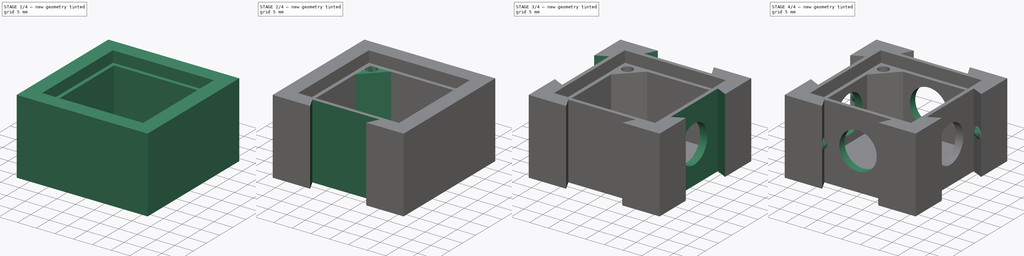
[diagram: build sequence overview — one tinted view per stage of 4, left to right]
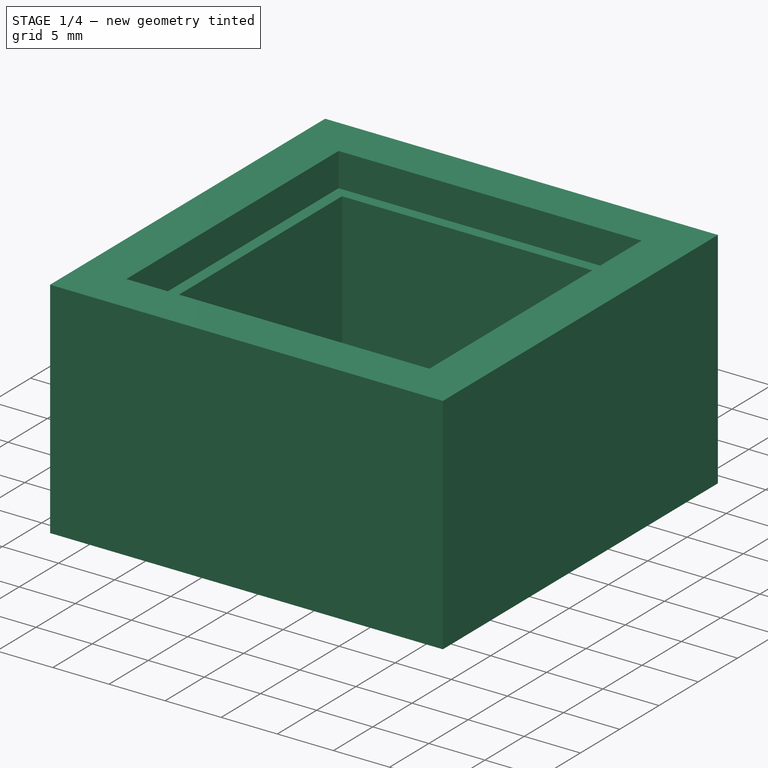
[diagram: stage 1 of 4 — iso view after this stage's code; geometry added in this stage tinted green]
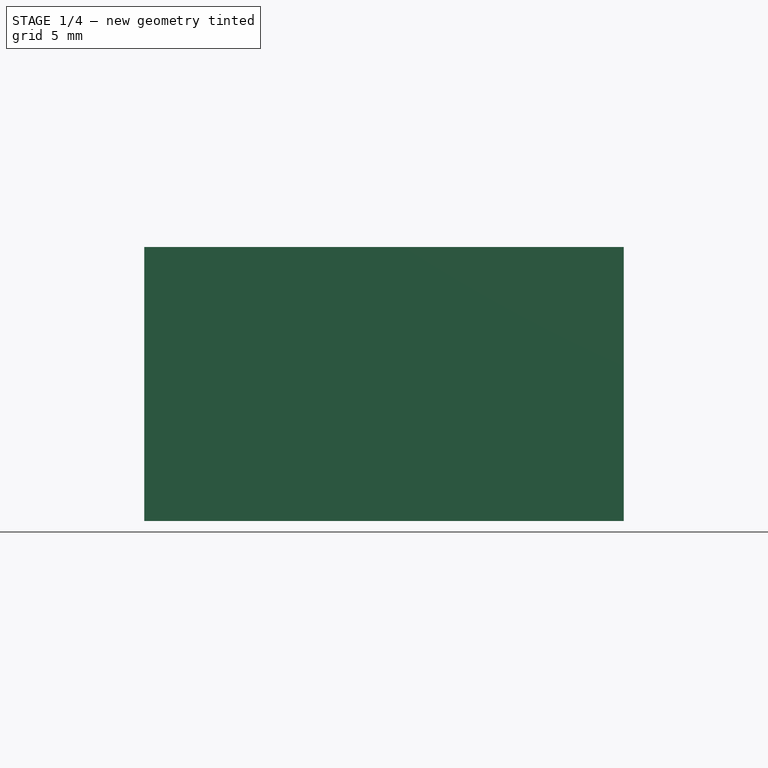
[diagram: stage 1 of 4 — front view after this stage's code; geometry added in this stage tinted green]
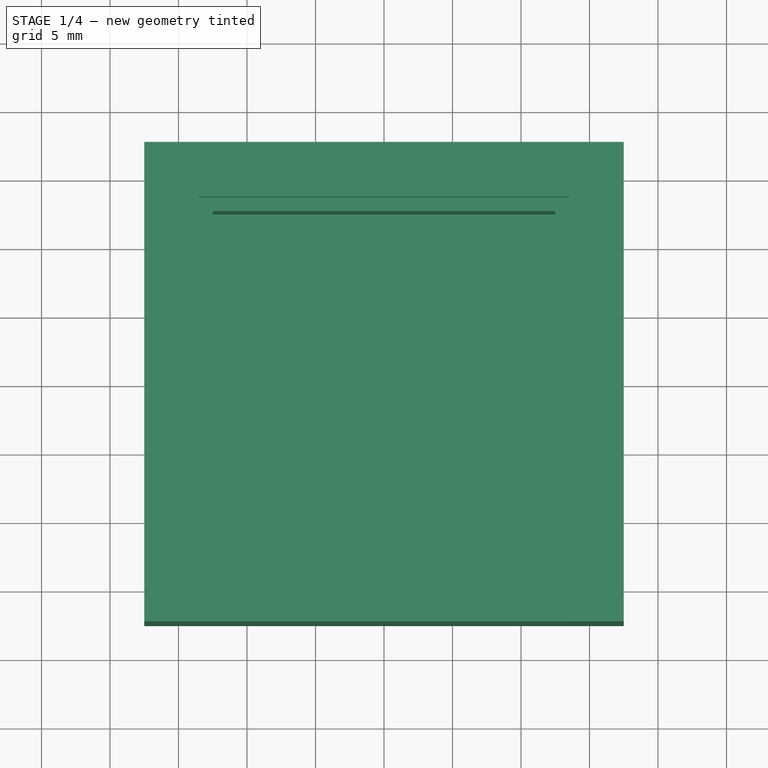
[diagram: stage 1 of 4 — top view after this stage's code; geometry added in this stage tinted green]
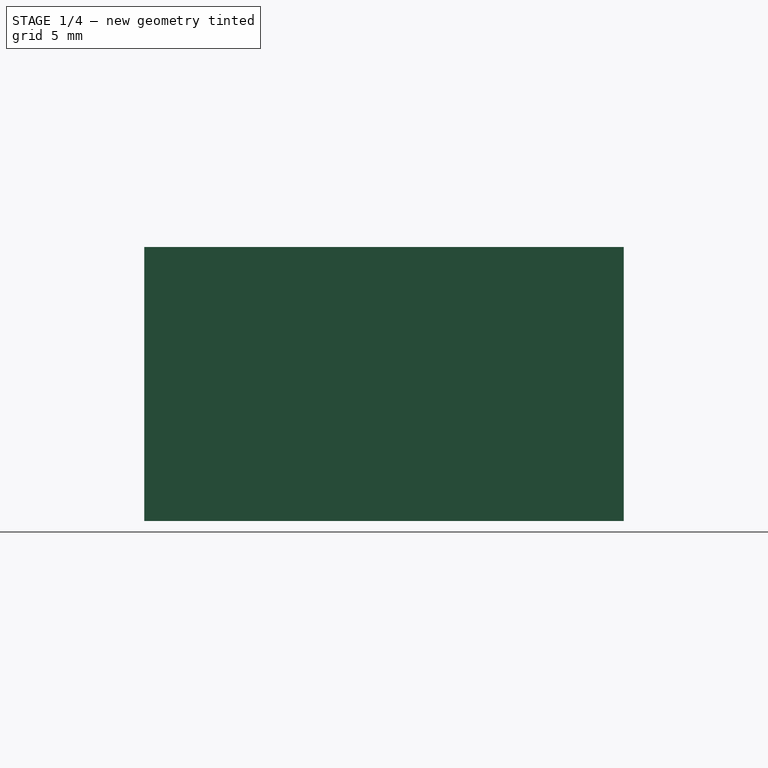
[diagram: stage 1 of 4 — right view after this stage's code; geometry added in this stage tinted green]
FCSTD DOCUMENT  (FreeCAD 0.18R4 (GitTag))
Label: CV2_4xGateway
License: All rights reserved
LicenseURL: http://en.wikipedia.org/wiki/All_rights_reserved
objects: Sketcher::SketchObject×8, PartDesign::Pocket×5, PartDesign::PolarPattern×3, PartDesign::Pad×2, PartDesign::Plane×1, PartDesign::Revolution×1, PartDesign::Mirrored×1, PartDesign::MultiTransform×1, PartDesign::Body×1
note: 31 computed .brp shape members not serialized (recipe doc carries the construction recipe); baked Part::Feature solids carry a one-line shape summary decoded from their .brp

FEATURE [Sketcher::SketchObject] Sketch
  MapMode = 5
  Support = -> [XY_Plane]
  sketch-geometry (4):
    g0: LineSegment StartX=-17.5 StartY=17.5 StartZ=0 EndX=17.5 EndY=17.5 EndZ=0
    g1: LineSegment StartX=17.5 StartY=17.5 StartZ=0 EndX=17.5 EndY=-17.5 EndZ=0
    g2: LineSegment StartX=17.5 StartY=-17.5 StartZ=0 EndX=-17.5 EndY=-17.5 EndZ=0
    g3: LineSegment StartX=-17.5 StartY=-17.5 StartZ=0 EndX=-17.5 EndY=17.5 EndZ=0
  constraints (10):
    c: Coincident(g0,g1)
    c: Coincident(g1,g2)
    c: Coincident(g2,g3)
    c: Coincident(g3,g0)
    c: Horizontal(g2)
    c: Vertical(g1)
    c: DistanceX(g2,g2) = 35
    c: DistanceY(g1,g1) = 35
    c: Symmetric(g0,g2,g-1)
    c: Symmetric(g0,g0,g-2)
FEATURE [PartDesign::Pad] Pad  label="Case"
  Length = 20
  Length2 = 100
  Profile = -> Sketch
  Type = 0
FEATURE [Sketcher::SketchObject] Sketch001
  MapMode = 5
  Placement = pos=(0,0,20) rot=(0,0,1;0rad)
  Support = -> [Pad]
  sketch-geometry (4):
    g0: LineSegment StartX=-13.5 StartY=13.5 StartZ=0 EndX=13.5 EndY=13.5 EndZ=0
    g1: LineSegment StartX=13.5 StartY=13.5 StartZ=0 EndX=13.5 EndY=-13.5 EndZ=0
    g2: LineSegment StartX=13.5 StartY=-13.5 StartZ=0 EndX=-13.5 EndY=-13.5 EndZ=0
    g3: LineSegment StartX=-13.5 StartY=-13.5 StartZ=0 EndX=-13.5 EndY=13.5 EndZ=0
  constraints (10):
    c: Coincident(g0,g1)
    c: Coincident(g1,g2)
    c: Coincident(g2,g3)
    c: Coincident(g3,g0)
    c: Horizontal(g2)
    c: Vertical(g1)
    c: DistanceX(g2,g2) = 27
    c: DistanceY(g1,g1) = 27
    c: Symmetric(g2,g0,g-1)
    c: Symmetric(g0,g0,g-2)
FEATURE [PartDesign::Pocket] Pocket  label="Plexi-Cutout"
  BaseFeature = -> Pad
  Length = 3
  Length2 = 100
  Profile = -> Sketch001
  Type = 0
FEATURE [Sketcher::SketchObject] Sketch002
  MapMode = 5
  Placement = pos=(0,0,17) rot=(0,0,1;0rad)
  Support = -> [Pocket]
  sketch-geometry (4):
    g0: LineSegment StartX=-12.5 StartY=12.5 StartZ=0 EndX=12.5 EndY=12.5 EndZ=0
    g1: LineSegment StartX=12.5 StartY=12.5 StartZ=0 EndX=12.5 EndY=-12.5 EndZ=0
    g2: LineSegment StartX=12.5 StartY=-12.5 StartZ=0 EndX=-12.5 EndY=-12.5 EndZ=0
    g3: LineSegment StartX=-12.5 StartY=-12.5 StartZ=0 EndX=-12.5 EndY=12.5 EndZ=0
  constraints (10):
    c: Coincident(g0,g1)
    c: Coincident(g1,g2)
    c: Coincident(g2,g3)
    c: Coincident(g3,g0)
    c: Horizontal(g2)
    c: Vertical(g1)
    c: DistanceX(g2,g2) = 25
    c: DistanceY(g1,g1) = 25
    c: Symmetric(g0,g0,g-2)
    c: Symmetric(g2,g0,g-1)
FEATURE [PartDesign::Pocket] Pocket001
  BaseFeature = -> Pocket
  Length = 14
  Length2 = 100
  Profile = -> Sketch002
  Type = 0
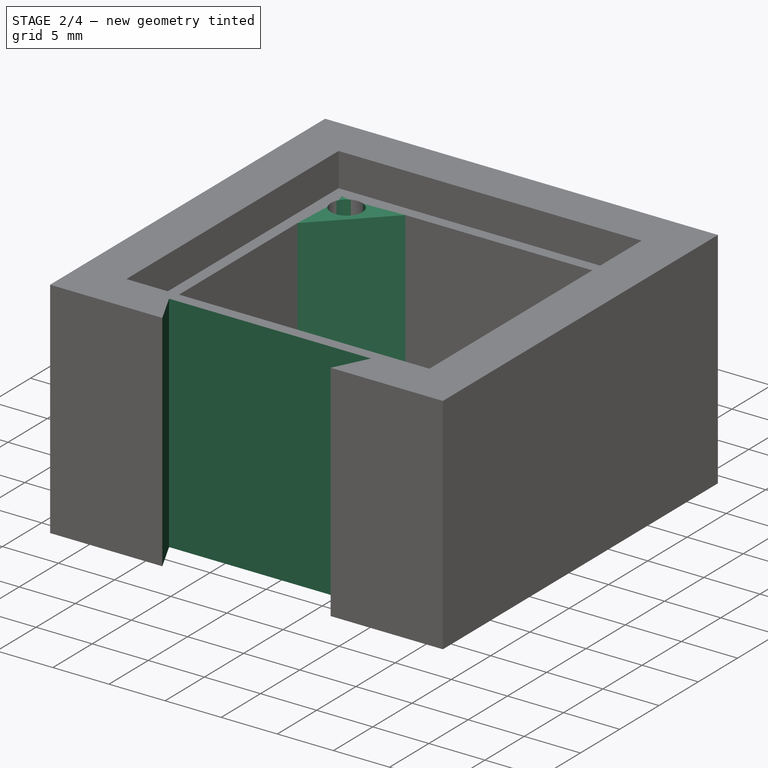
[diagram: stage 2 of 4 — iso view after this stage's code; geometry added in this stage tinted green]
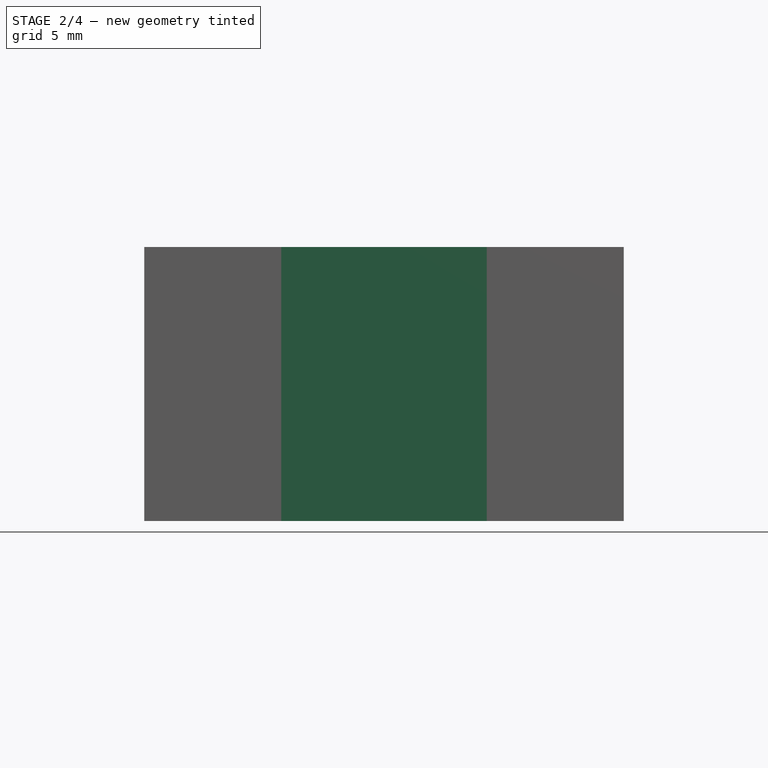
[diagram: stage 2 of 4 — front view after this stage's code; geometry added in this stage tinted green]
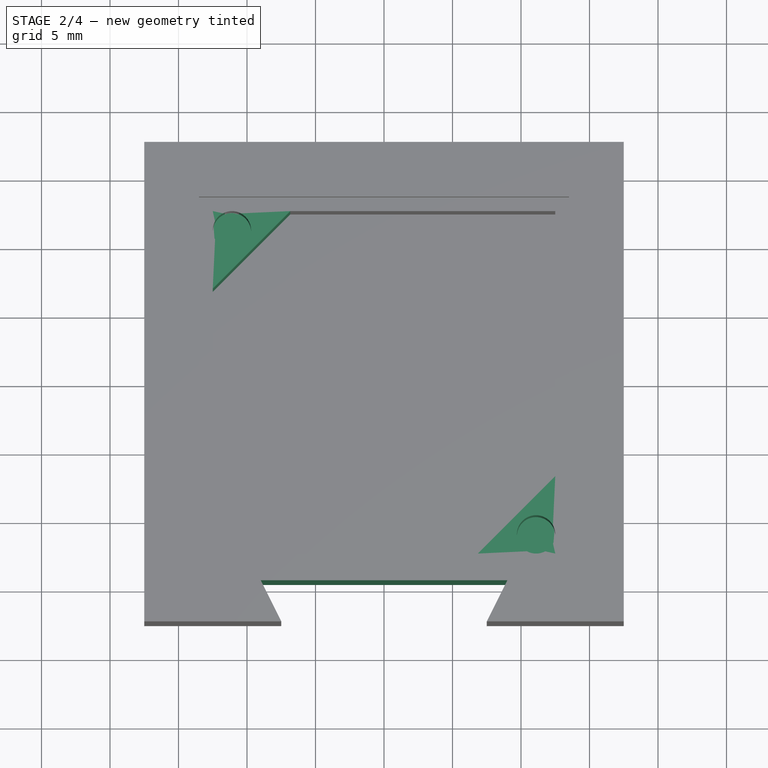
[diagram: stage 2 of 4 — top view after this stage's code; geometry added in this stage tinted green]
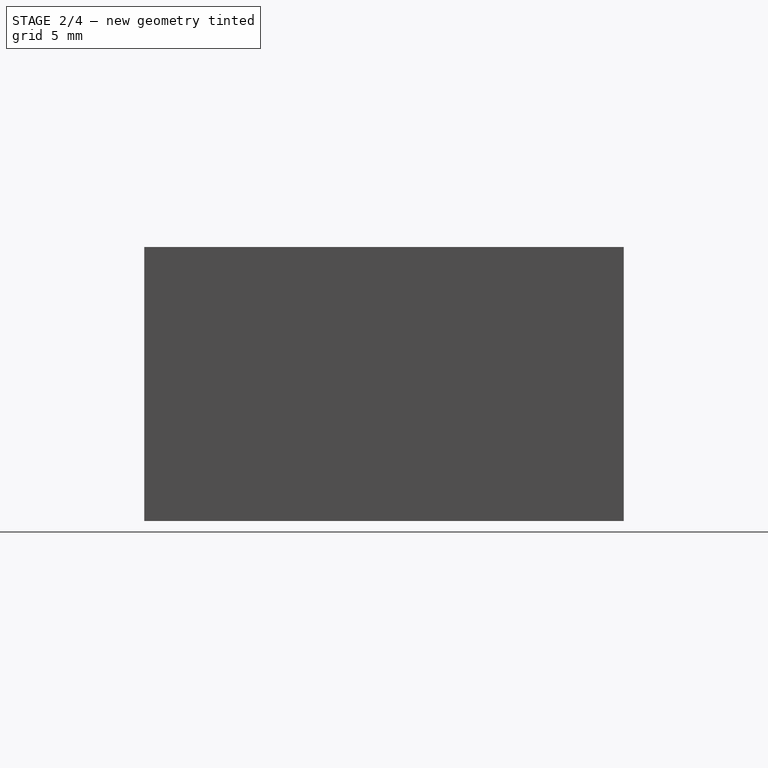
[diagram: stage 2 of 4 — right view after this stage's code; geometry added in this stage tinted green]
FEATURE [Sketcher::SketchObject] Sketch003
  ExternalGeometry = -> [Pocket001]
  MapMode = 5
  Placement = pos=(0,0,3) rot=(0,0,1;0rad)
  Support = -> [Pocket001]
  sketch-geometry (6):
    g0: LineSegment StartX=-12.5 StartY=12.5 StartZ=0 EndX=-12.5 EndY=6.84315 EndZ=0
    g1: LineSegment StartX=-12.5 StartY=6.84315 StartZ=0 EndX=-6.84315 EndY=12.5 EndZ=0
    g2: LineSegment StartX=-6.84315 StartY=12.5 StartZ=0 EndX=-12.5 EndY=12.5 EndZ=0
    g3: LineSegment StartX=6.84315 StartY=-12.5 StartZ=0 EndX=12.5 EndY=-12.5 EndZ=0
    g4: LineSegment StartX=12.5 StartY=-12.5 StartZ=0 EndX=12.5 EndY=-6.84315 EndZ=0
    g5: LineSegment StartX=12.5 StartY=-6.84315 StartZ=0 EndX=6.84315 EndY=-12.5 EndZ=0
  constraints (16):
    c: Coincident(g0,g1)
    c: Coincident(g1,g2)
    c: Coincident(g2,g0)
    c: Distance(g1) = 8
    c: Coincident(g0,g-3)
    c: PointOnObject(g0,g-3)
    c: Coincident(g3,g4)
    c: Coincident(g4,g5)
    c: Coincident(g5,g3)
    c: Perpendicular(g4,g3)
    c: Perpendicular(g2,g0)
    c: Equal(g0,g2)
    c: Coincident(g3,g-4)
    c: Distance(g5) = 8
    c: PointOnObject(g4,g-4)
    c: Equal(g3,g4)
FEATURE [PartDesign::Pad] Pad001  label="Borehole_Support"
  BaseFeature = -> Pocket001
  Length = 14
  Length2 = 100
  Profile = -> Sketch003
  Type = 0
FEATURE [Sketcher::SketchObject] Sketch004
  ExternalGeometry = -> [Pad001]
  MapMode = 5
  Placement = pos=(0,0,17) rot=(0,0,1;0rad)
  Support = -> [Pad001]
  sketch-geometry (2):
    g0: Circle CenterX=-11.1 CenterY=11.1 CenterZ=0 NormalX=0 NormalY=0 NormalZ=1 AngleXU=0 Radius=1.4
    g1: Circle CenterX=11.1 CenterY=-11.1 CenterZ=0 NormalX=0 NormalY=0 NormalZ=1 AngleXU=0 Radius=1.4
  constraints (6):
    c: Radius(g0) = 1.4
    c: Radius(g1) = 1.4
    c: Tangent(g0,g-7)
    c: Tangent(g0,g-8)
    c: Tangent(g1,g-10)
    c: Tangent(g-9,g1)
FEATURE [PartDesign::Pocket] Pocket002  label="Boreholes"
  BaseFeature = -> Pad001
  Length = 8
  Length2 = 100
  Profile = -> Sketch004
  Type = 0
FEATURE [Sketcher::SketchObject] Sketch009
  MapMode = 5
  Placement = pos=(0,0,20) rot=(0,0,1;0rad)
  Support = -> [Pocket002]
  sketch-geometry (4):
    g0: LineSegment StartX=-9 StartY=-14.5 StartZ=0 EndX=9 EndY=-14.5 EndZ=0
    g1: LineSegment StartX=9 StartY=-14.5 StartZ=0 EndX=7.5 EndY=-17.5 EndZ=0
    g2: LineSegment StartX=7.5 StartY=-17.5 StartZ=0 EndX=-7.5 EndY=-17.5 EndZ=0
    g3: LineSegment StartX=-7.5 StartY=-17.5 StartZ=0 EndX=-9 EndY=-14.5 EndZ=0
  constraints (11):
    c: Coincident(g0,g1)
    c: Coincident(g1,g2)
    c: Coincident(g2,g3)
    c: Coincident(g3,g0)
    c: Horizontal(g2)
    c: DistanceX(g2,g2) = 15
    c: DistanceX(g0,g0) = 18
    c: Equal(g3,g1)
    c: DistanceY(g2,g0) = 3
    c: Symmetric(g0,g0,g-2)
    c: DistanceY(g1,g-1) = 17.5
FEATURE [PartDesign::Pocket] Pocket003  label="ConnectorCutout"
  BaseFeature = -> Pocket002
  Length = 20
  Length2 = 100
  Profile = -> Sketch009
  Type = 0
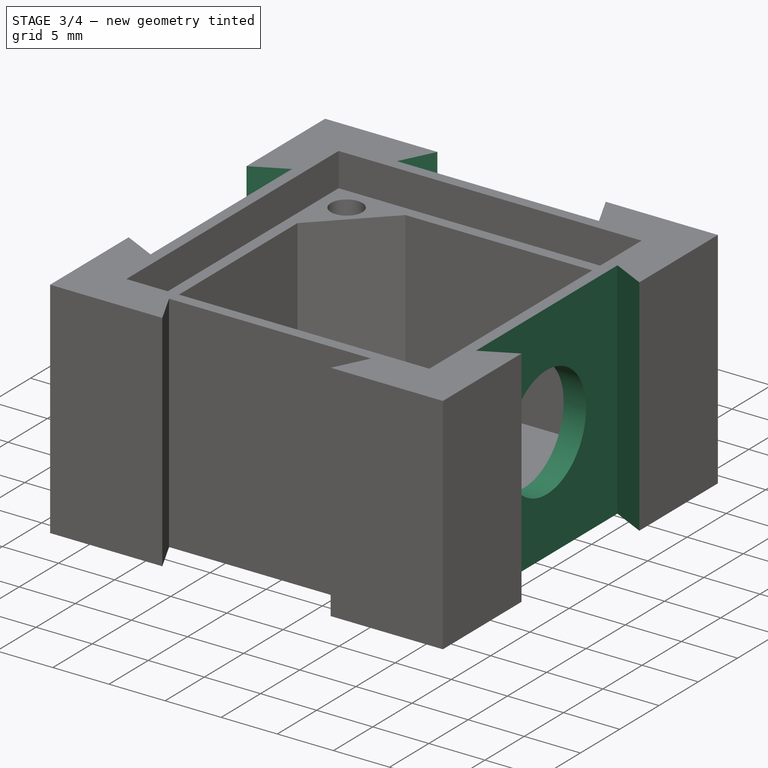
[diagram: stage 3 of 4 — iso view after this stage's code; geometry added in this stage tinted green]
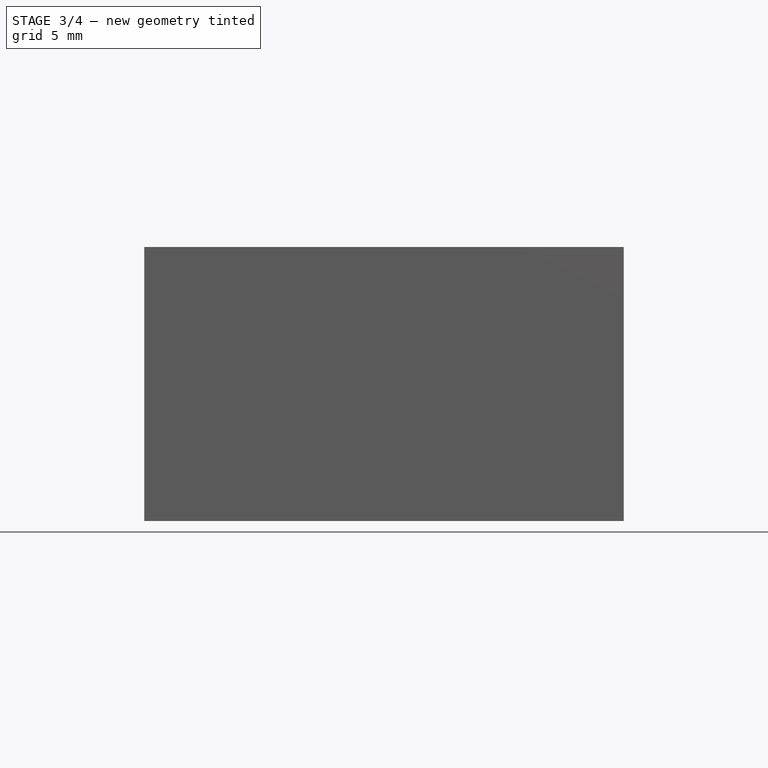
[diagram: stage 3 of 4 — front view after this stage's code; geometry added in this stage tinted green]
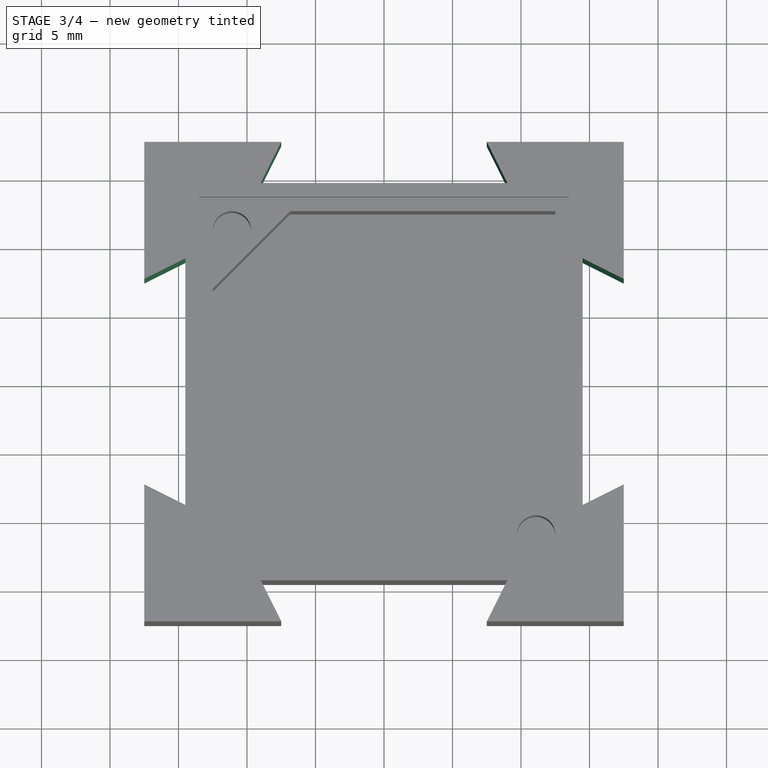
[diagram: stage 3 of 4 — top view after this stage's code; geometry added in this stage tinted green]
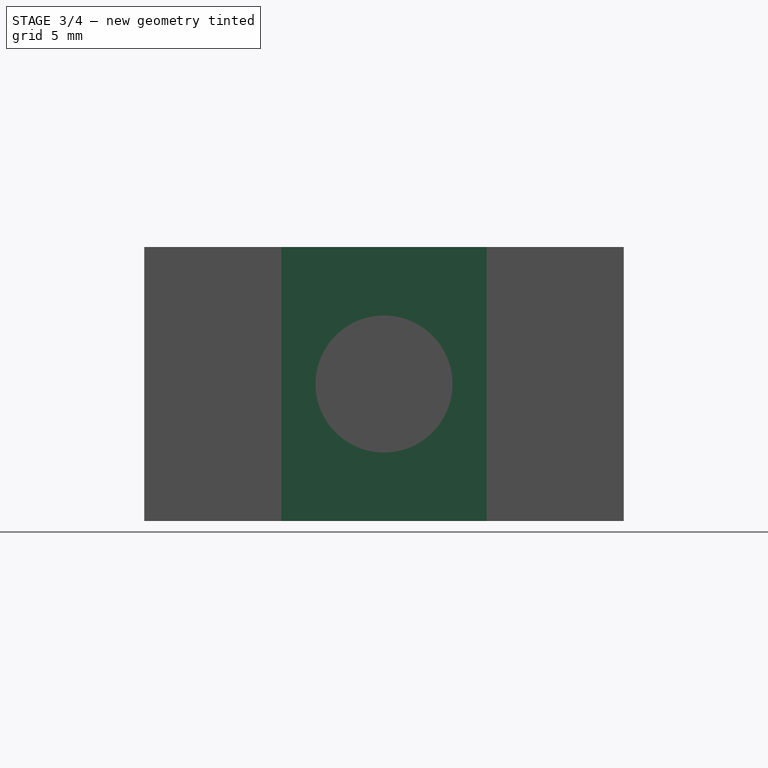
[diagram: stage 3 of 4 — right view after this stage's code; geometry added in this stage tinted green]
FEATURE [PartDesign::PolarPattern] PolarPattern  label="CC_Pattern"
  Angle = 360
  Axis = -> Sketch009 [N_Axis]
  BaseFeature = -> Pocket003
  Occurrences = 4
  Originals = -> [Pocket003]
FEATURE [Sketcher::SketchObject] Sketch010
  MapMode = 5
  Placement = pos=(14.5,-1.6e-15,0) rot=(0.57735,0.57735,0.57735;2.0944rad)
  Support = -> [PolarPattern]
  sketch-geometry (1):
    g0: Circle CenterX=0 CenterY=10 CenterZ=0 NormalX=0 NormalY=0 NormalZ=1 AngleXU=0 Radius=5
  constraints (3):
    c: Radius(g0) = 5
    c: PointOnObject(g0,g-2)
    c: DistanceY(g-1,g0) = 10
FEATURE [PartDesign::Pocket] Pocket004
  BaseFeature = -> PolarPattern
  Length = 2
  Length2 = 100
  Profile = -> Sketch010
  Type = 0
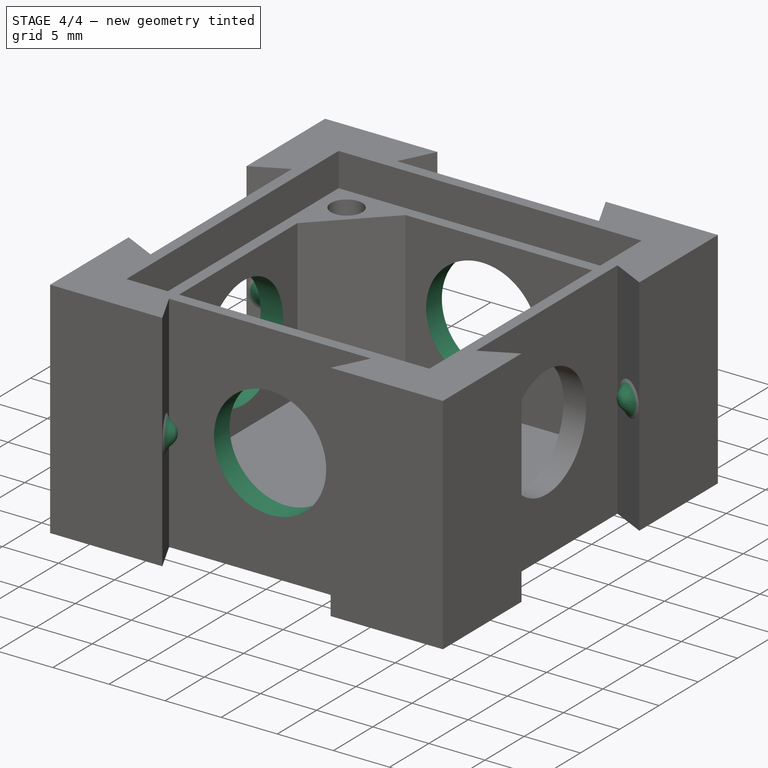
[diagram: stage 4 of 4 — iso view after this stage's code; geometry added in this stage tinted green]
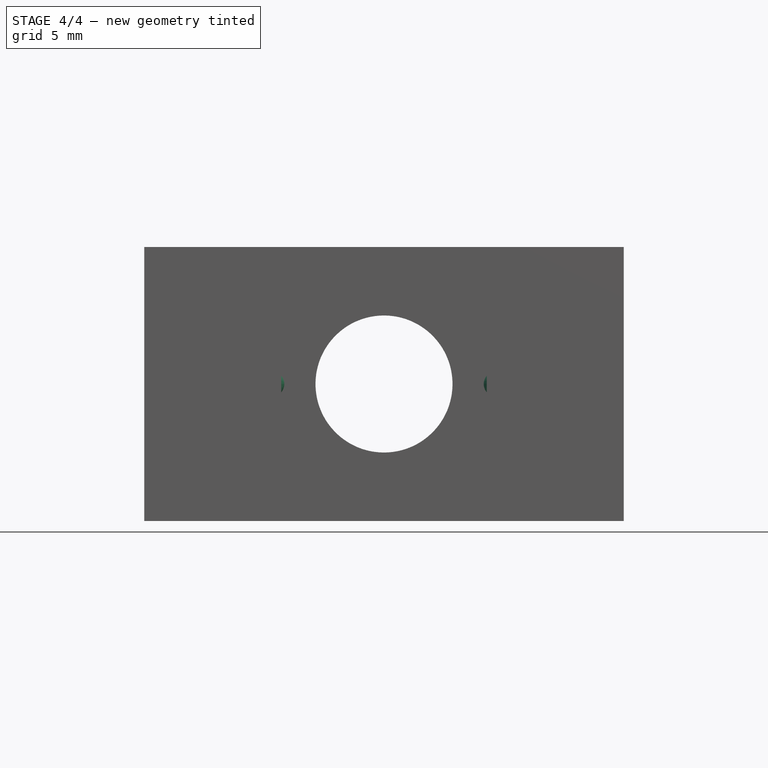
[diagram: stage 4 of 4 — front view after this stage's code; geometry added in this stage tinted green]
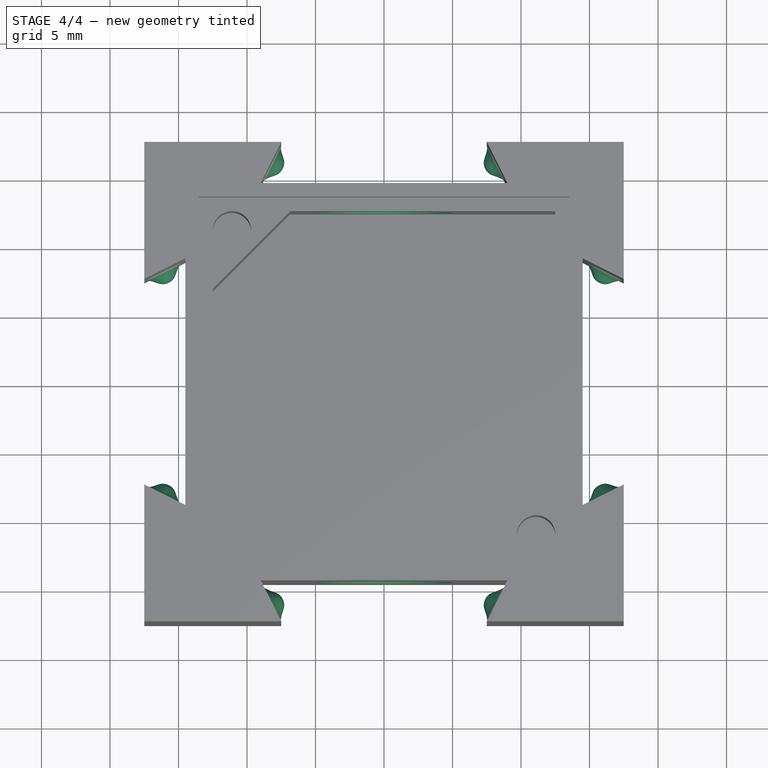
[diagram: stage 4 of 4 — top view after this stage's code; geometry added in this stage tinted green]
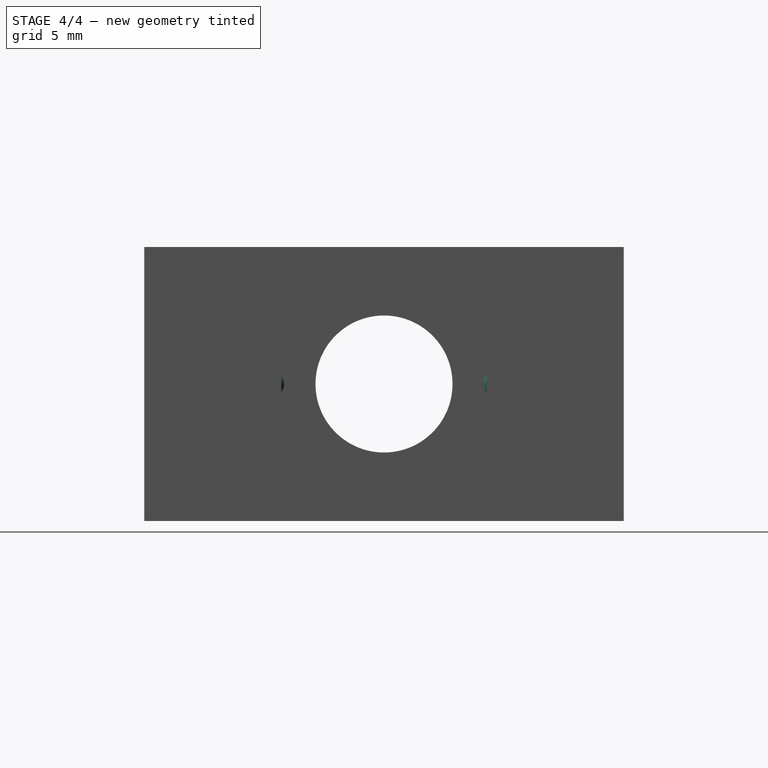
[diagram: stage 4 of 4 — right view after this stage's code; geometry added in this stage tinted green]
FEATURE [PartDesign::PolarPattern] PolarPattern001
  Angle = 360
  Axis = -> Z_Axis
  BaseFeature = -> Pocket004
  Occurrences = 4
  Originals = -> [Pocket004]
FEATURE [PartDesign::Plane] DatumPlane
  AttachmentOffset = pos=(0,10,0) rot=(1,0,0;1.5708rad)
  Length = 56.3489
  MapMode = 5
  Placement = pos=(-6.5,-13,10) rot=(0.229753,0.973249,0;3.14159rad)
  ResizeMode = 0
  Support = -> [PolarPattern001]
  Width = 56.3489
FEATURE [Sketcher::SketchObject] Sketch011
  ExternalGeometry = -> [PolarPattern001]
  MapMode = 5
  Placement = pos=(-6.5,-13,10) rot=(0.229753,0.973249,0;3.14159rad)
  Support = -> [DatumPlane]
  sketch-geometry (9):
    g0: LineSegment StartX=12.2443 StartY=7.1e-15 StartZ=0 EndX=10.7443 EndY=7.1e-15 EndZ=0
    g1: LineSegment StartX=10.7443 StartY=7.1e-15 StartZ=0 EndX=10.7443 EndY=0.9 EndZ=0
    g2-g5: Circle [constr] x4 (B-spline internal-alignment scaffolding for g6; pole/knot coordinates omitted)
    g6: BSplineCurve PolesCount=4 KnotsCount=2 Degree=3 IsPeriodic=0
    g7: GeomPoint [constr] X=10.7443 Y=0.9 Z=0
    g8: GeomPoint [constr] X=12.2443 Y=7.1e-15 Z=0
  constraints (20):
    c: Horizontal(g0)
    c: Coincident(g0,g1)
    c: Vertical(g1)
    c: Coincident(g6,g1)
    c: Radius(g2) = 0.06
    c: Equal(g2,g3)
    c: Equal(g2,g4)
    c: Equal(g2,g5)
    c: Coincident(g6,g0)
    c: InternalAlignment(g2-g5 -> g6) x4
    c: InternalAlignment(g7,g6)
    c: InternalAlignment(g8,g6)
    c: Horizontal(g3,g1)
    c: Vertical(g4,g3)
    c: DistanceX(g0,g0) = 1.5
    c: DistanceY(g1,g1) = 0.9
    c: DistanceY(g4,g3) = 0.6
    c: DistanceX(g0,g4) = 0.75
    c: DistanceX(g-3,g0) = 1.8
    c: DistanceY(g-3,g0) = 0
FEATURE [PartDesign::Revolution] Revolution
  Angle = 360
  Axis = (0.447214,0.894427,-2e-16)
  Base = (-16.11,-8.19502,10)
  BaseFeature = -> PolarPattern001
  Profile = -> Sketch011
  ReferenceAxis = -> Sketch011 [Edge2]
  Reversed = true
FEATURE [PartDesign::Mirrored] Mirrored
  MirrorPlane = -> XZ_Plane
FEATURE [PartDesign::PolarPattern] PolarPattern002
  Angle = 360
  Axis = -> Z_Axis
  Occurrences = 4
FEATURE [PartDesign::MultiTransform] MultiTransform
  BaseFeature = -> Revolution
  Originals = -> [Revolution]
  Transformations = -> [Mirrored,PolarPattern002]
FEATURE [PartDesign::Body] Body
  Group = -> [Sketch,Pad,Sketch001,Pocket,Sketch002,Pocket001,Sketch003,Pad001,Sketch004,Pocket002,Sketch009,Pocket003,PolarPattern,Sketch010,Pocket004,PolarPattern001,DatumPlane,Sketch011,Revolution,MultiTransform,Mirrored,PolarPattern002]
  Origin = -> Origin
  Tip = -> MultiTransform
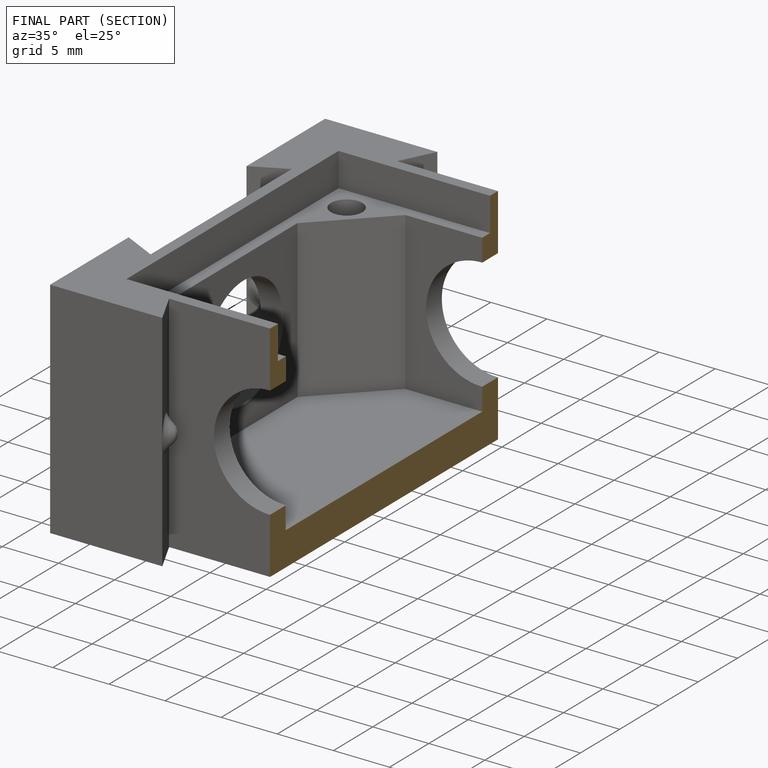
[diagram: finished part — half-section view (interior)]
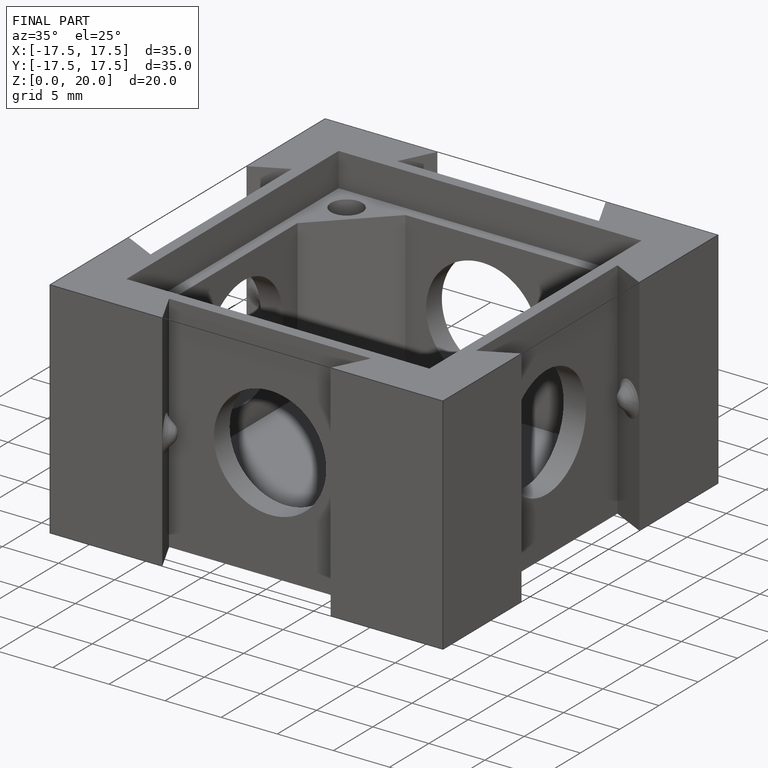
[diagram: finished part — iso view with bounding-box wireframe]
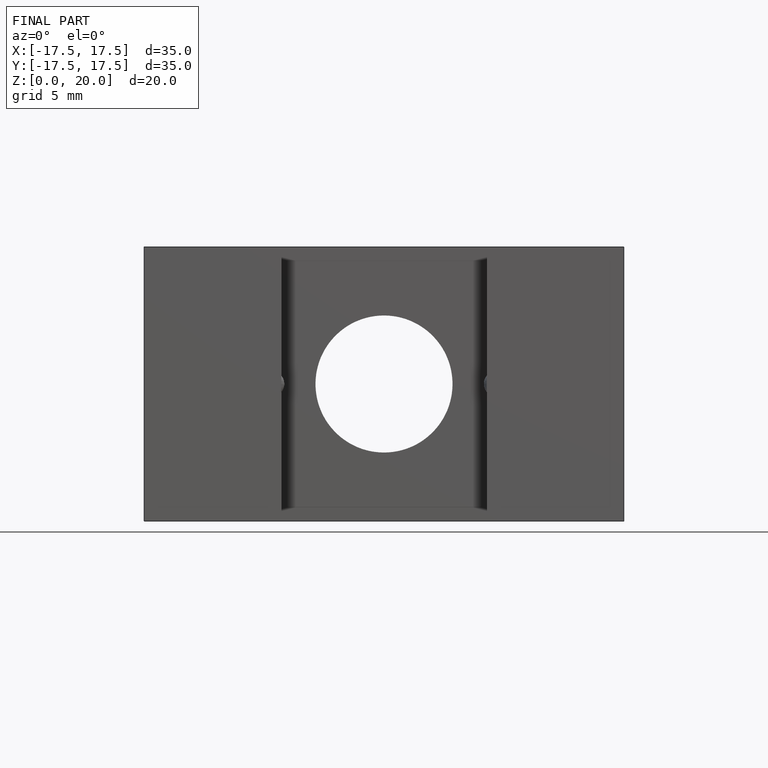
[diagram: finished part — front view with bounding-box wireframe]
